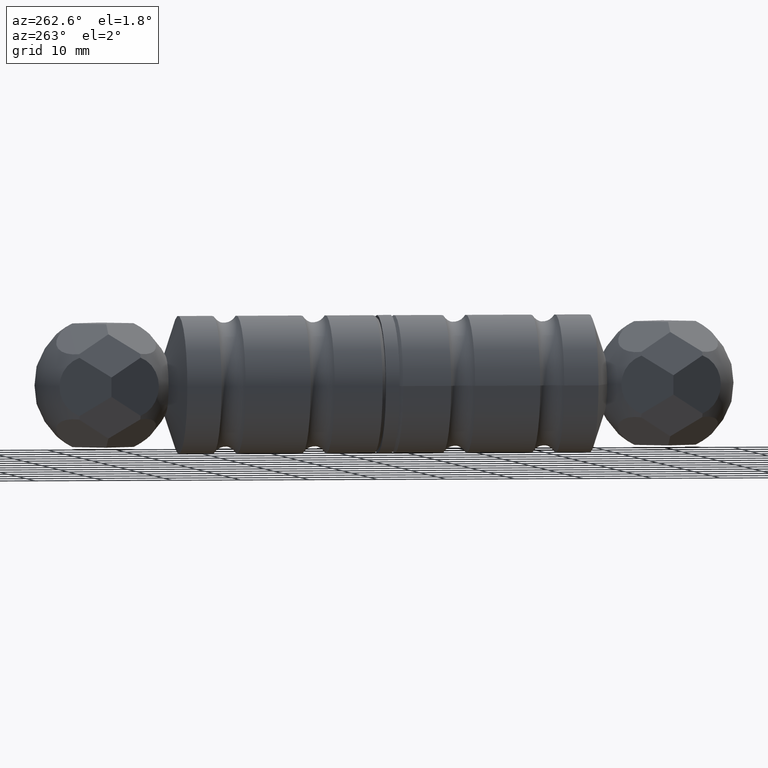
[diagram: clean part render]
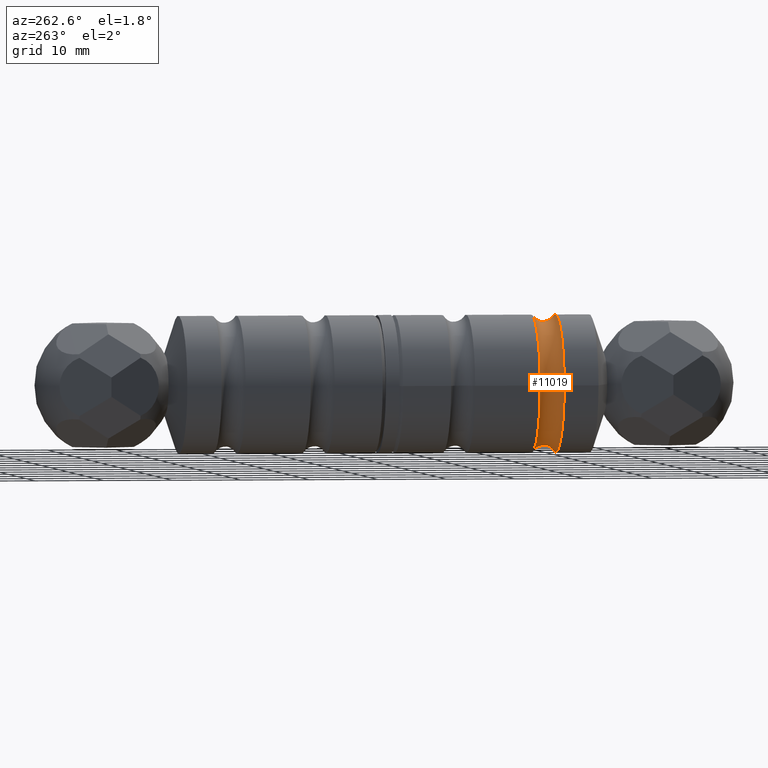
[diagram: same view with one face highlighted and labeled with its STEP entity id]
A machine part, auxiliary view. The second image highlights one B-rep face of the part: STEP entity #11019.
In plain terms, the highlighted toroidal blend (fillet) surface has major radius 11.0313 mm and minor (blend) radius 2.0312 mm.
Its self-contained STEP definition (entity closure, byte-faithful):
#200 = AXIS2_PLACEMENT_3D ( 'NONE', #954, #865, #7871 ) ;
#363 = ORIENTED_EDGE ( 'NONE', *, *, #5727, .T. ) ;
#479 = EDGE_LOOP ( 'NONE', ( #11996 ) ) ;
#865 = DIRECTION ( 'NONE',  ( -1.027308801756978216E-18, -1.000000000000000000, 0.000000000000000000 ) ) ;
#954 = CARTESIAN_POINT ( 'NONE',  ( 2.105983043601715055E-17, 20.50000000000000355, 0.000000000000000000 ) ) ;
#1616 = CARTESIAN_POINT ( 'NONE',  ( 10.00000000000000355, 23.99999999999999289, 0.000000000000000000 ) ) ;
#1698 = VERTEX_POINT ( 'NONE', #1616 ) ;
#4121 = CARTESIAN_POINT ( 'NONE',  ( 0.000000000000000000, 22.25000000000000000, 5.473822126268816683E-45 ) ) ;
#4251 = DIRECTION ( 'NONE',  ( -1.027308801756978216E-18, -1.000000000000000000, 0.000000000000000000 ) ) ;
#4815 = DIRECTION ( 'NONE',  ( 1.000000000000000000, 0.000000000000000000, 0.000000000000000000 ) ) ;
#5032 = AXIS2_PLACEMENT_3D ( 'NONE', #12720, #7700, #4815 ) ;
#5075 = DIRECTION ( 'NONE',  ( 1.000000000000000000, -1.027308801756978216E-18, 0.000000000000000000 ) ) ;
#5727 = EDGE_CURVE ( 'NONE', #1698, #1698, #10311, .T. ) ;
#6192 = FACE_OUTER_BOUND ( 'NONE', #479, .T. ) ;
#6779 = AXIS2_PLACEMENT_3D ( 'NONE', #4121, #4251, #5075 ) ;
#7700 = DIRECTION ( 'NONE',  ( -1.027308801756978216E-18, -1.000000000000000000, 0.000000000000000000 ) ) ;
#7868 = VERTEX_POINT ( 'NONE', #12368 ) ;
#7871 = DIRECTION ( 'NONE',  ( 1.000000000000000000, 0.000000000000000000, 0.000000000000000000 ) ) ;
#8934 = EDGE_LOOP ( 'NONE', ( #363 ) ) ;
#9300 = TOROIDAL_SURFACE ( 'NONE', #6779, 11.03125000000000355, 2.031250000000000000 ) ;
#10074 = EDGE_CURVE ( 'NONE', #7868, #7868, #12699, .T. ) ;
#10311 = CIRCLE ( 'NONE', #5032, 10.00000000000000355 ) ;
#11019 = ADVANCED_FACE ( 'NONE', ( #11924, #6192 ), #9300, .F. ) ;
#11924 = FACE_OUTER_BOUND ( 'NONE', #8934, .T. ) ;
#11996 = ORIENTED_EDGE ( 'NONE', *, *, #10074, .F. ) ;
#12368 = CARTESIAN_POINT ( 'NONE',  ( 10.00000000000000000, 20.50000000000000355, 0.000000000000000000 ) ) ;
#12699 = CIRCLE ( 'NONE', #200, 10.00000000000000000 ) ;
#12720 = CARTESIAN_POINT ( 'NONE',  ( 2.465541124216777300E-17, 23.99999999999999289, 0.000000000000000000 ) ) ;